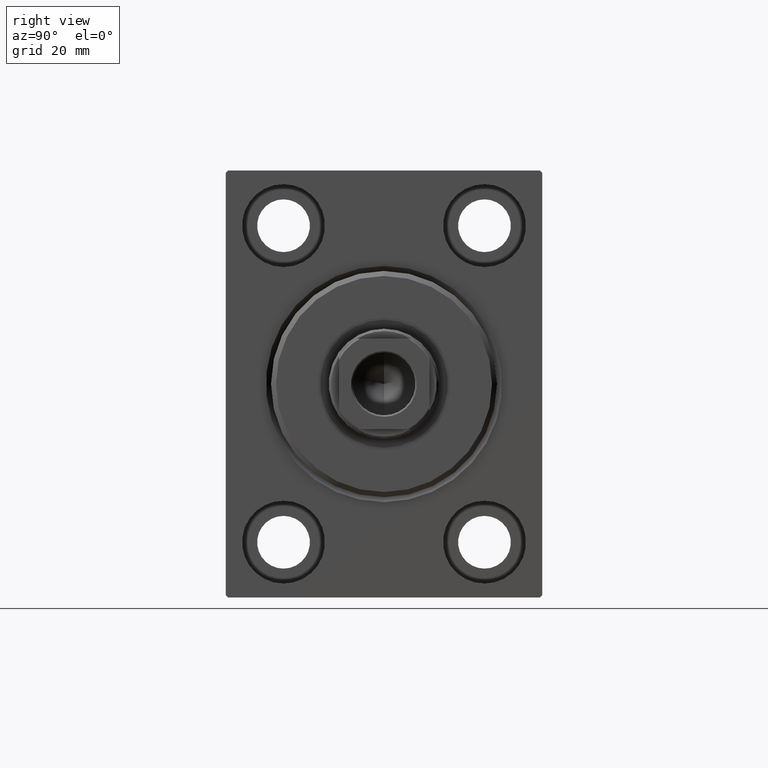
[diagram: clean part render]
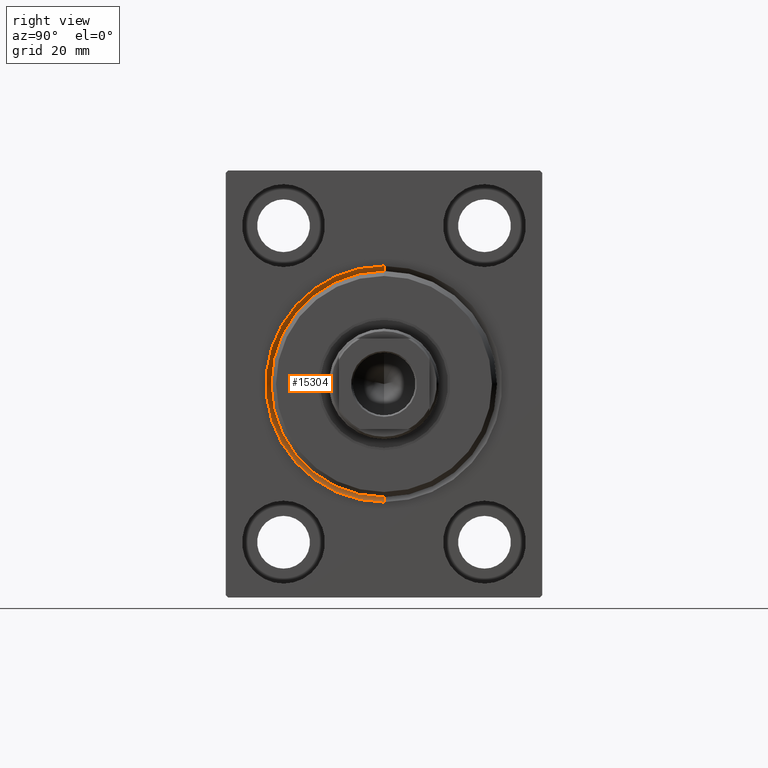
[diagram: same view with one face highlighted and labeled with its STEP entity id]
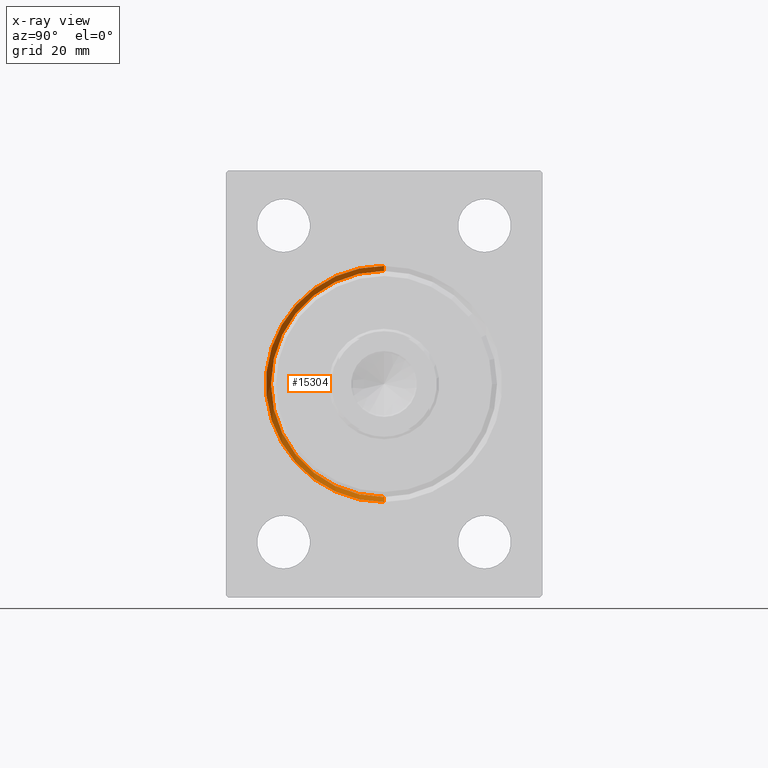
[diagram: x-ray of the same camera — body ghosted, the highlighted face saturated]
A machine part, right view. The second image highlights one B-rep face of the part: STEP entity #15304.
The next image is the same camera in x-ray: the body ghosted, the highlighted face saturated — about 0% of this face is hidden behind the body in this view.
In plain terms, the highlighted conical surface has half-angle 45 deg.
Its self-contained STEP definition (entity closure, byte-faithful):
#96 = EDGE_LOOP ( 'NONE', ( #9570, #32649, #16244, #23099 ) ) ;
#524 = DIRECTION ( 'NONE',  ( -1.000000000000000000, 0.000000000000000000, 0.000000000000000000 ) ) ;
#749 = DIRECTION ( 'NONE',  ( 0.000000000000000000, 0.000000000000000000, -1.000000000000000000 ) ) ;
#1031 = EDGE_CURVE ( 'NONE', #33151, #31388, #32219, .T. ) ;
#3759 = DIRECTION ( 'NONE',  ( 1.000000000000000000, 0.000000000000000000, 0.000000000000000000 ) ) ;
#6254 = VECTOR ( 'NONE', #15770, 1000.000000000000114 ) ;
#8762 = DIRECTION ( 'NONE',  ( -0.7071067811865474617, 8.659560562354932858E-17, -0.7071067811865474617 ) ) ;
#9570 = ORIENTED_EDGE ( 'NONE', *, *, #15313, .F. ) ;
#11936 = LINE ( 'NONE', #22525, #6254 ) ;
#14726 = DIRECTION ( 'NONE',  ( 0.000000000000000000, 0.000000000000000000, 1.000000000000000000 ) ) ;
#15304 = ADVANCED_FACE ( 'NONE', ( #31186 ), #27343, .F. ) ;
#15313 = EDGE_CURVE ( 'NONE', #33151, #36704, #35976, .T. ) ;
#15770 = DIRECTION ( 'NONE',  ( -0.7071067811865474617, 0.000000000000000000, 0.7071067811865474617 ) ) ;
#16244 = ORIENTED_EDGE ( 'NONE', *, *, #37394, .F. ) ;
#18685 = CARTESIAN_POINT ( 'NONE',  ( 0.9999999999999870104, 2.755455298081545172E-15, -22.50000000000000355 ) ) ;
#20594 = CARTESIAN_POINT ( 'NONE',  ( 0.9999999999999870104, 0.000000000000000000, 22.50000000000000355 ) ) ;
#20827 = CARTESIAN_POINT ( 'NONE',  ( 0.9999999999999870104, 0.000000000000000000, 0.000000000000000000 ) ) ;
#21414 = CIRCLE ( 'NONE', #22850, 23.49999999999998934 ) ;
#22525 = CARTESIAN_POINT ( 'NONE',  ( 0.9999999999999870104, 0.000000000000000000, 22.50000000000000355 ) ) ;
#22850 = AXIS2_PLACEMENT_3D ( 'NONE', #24261, #3759, #42056 ) ;
#23099 = ORIENTED_EDGE ( 'NONE', *, *, #36804, .F. ) ;
#24261 = CARTESIAN_POINT ( 'NONE',  ( 0.000000000000000000, 0.000000000000000000, 0.000000000000000000 ) ) ;
#26385 = VECTOR ( 'NONE', #8762, 1000.000000000000114 ) ;
#27343 = CONICAL_SURFACE ( 'NONE', #31666, 22.50000000000000355, 0.7853981633974482790 ) ;
#29925 = CARTESIAN_POINT ( 'NONE',  ( 0.9999999999999870104, 2.755455298081545172E-15, -22.50000000000000355 ) ) ;
#31186 = FACE_OUTER_BOUND ( 'NONE', #96, .T. ) ;
#31388 = VERTEX_POINT ( 'NONE', #32190 ) ;
#31666 = AXIS2_PLACEMENT_3D ( 'NONE', #38631, #41566, #14726 ) ;
#32190 = CARTESIAN_POINT ( 'NONE',  ( 0.000000000000000000, 2.877919977996279137E-15, -23.49999999999998934 ) ) ;
#32219 = LINE ( 'NONE', #18685, #26385 ) ;
#32649 = ORIENTED_EDGE ( 'NONE', *, *, #1031, .T. ) ;
#33151 = VERTEX_POINT ( 'NONE', #29925 ) ;
#35148 = VERTEX_POINT ( 'NONE', #40483 ) ;
#35268 = AXIS2_PLACEMENT_3D ( 'NONE', #20827, #524, #749 ) ;
#35976 = CIRCLE ( 'NONE', #35268, 22.50000000000000355 ) ;
#36704 = VERTEX_POINT ( 'NONE', #20594 ) ;
#36804 = EDGE_CURVE ( 'NONE', #36704, #35148, #11936, .T. ) ;
#37394 = EDGE_CURVE ( 'NONE', #35148, #31388, #21414, .T. ) ;
#38631 = CARTESIAN_POINT ( 'NONE',  ( 0.9999999999999870104, 0.000000000000000000, 0.000000000000000000 ) ) ;
#40483 = CARTESIAN_POINT ( 'NONE',  ( 0.000000000000000000, 0.000000000000000000, 23.49999999999998934 ) ) ;
#41566 = DIRECTION ( 'NONE',  ( -1.000000000000000000, 0.000000000000000000, 0.000000000000000000 ) ) ;
#42056 = DIRECTION ( 'NONE',  ( 0.000000000000000000, 0.000000000000000000, -1.000000000000000000 ) ) ;